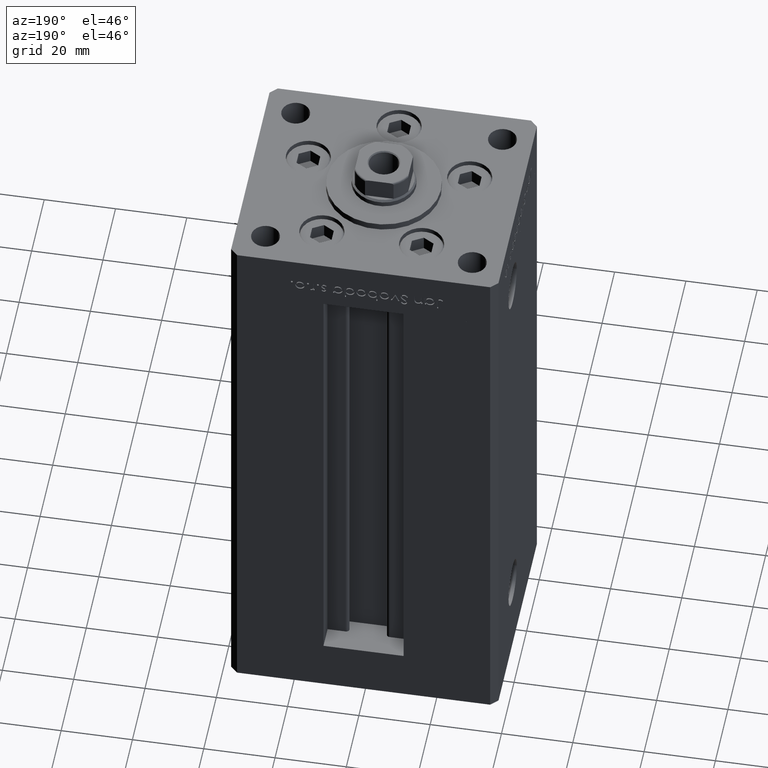
[diagram: clean part render]
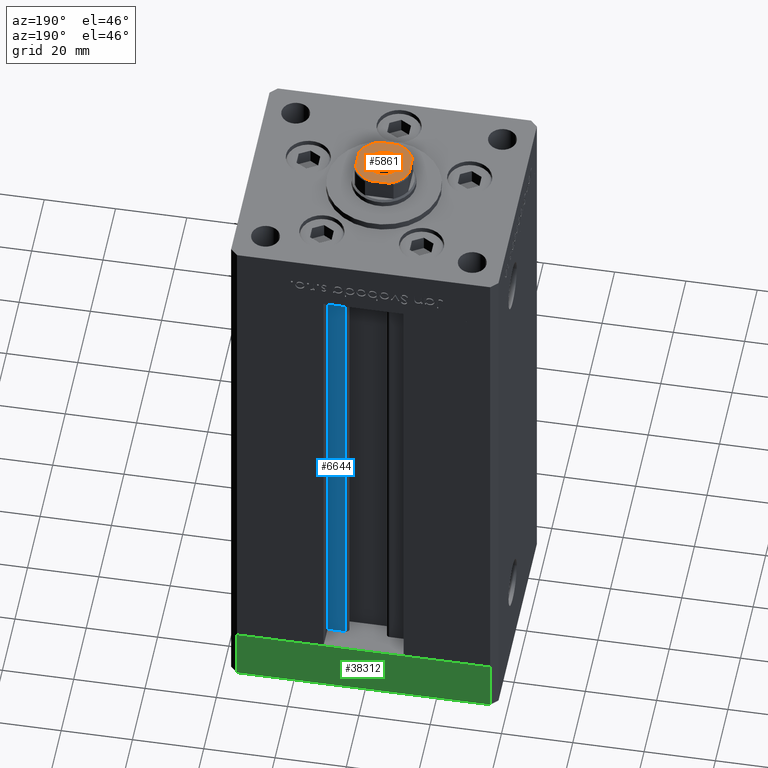
[diagram: same view with three faces highlighted in distinct colors, each labeled with its STEP entity id]
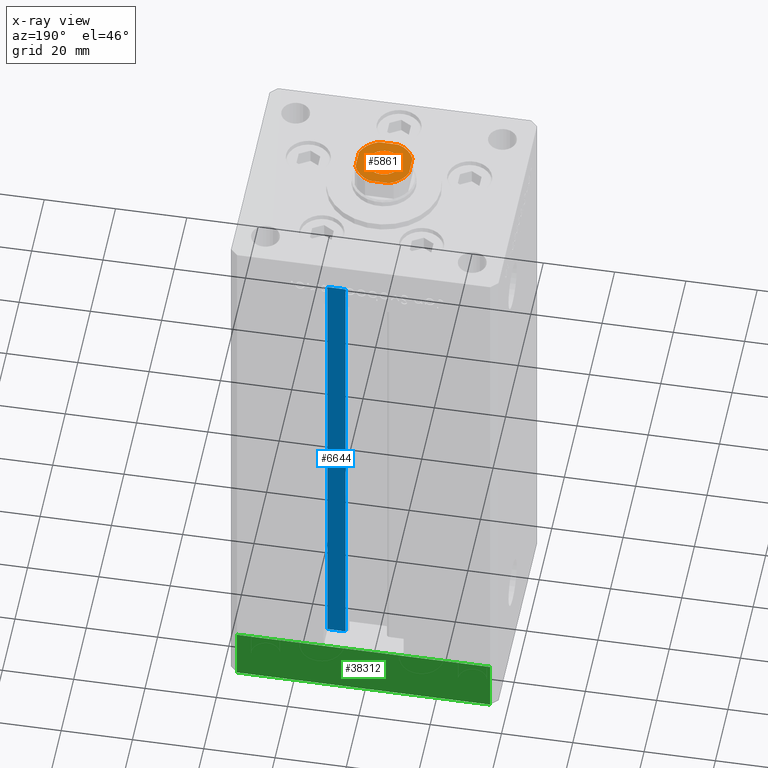
[diagram: x-ray of the same camera — body ghosted, the three highlighted faces saturated]
A machine part, auxiliary view with three faces highlighted in distinct colors.
The next image is the same camera in x-ray (body ghosted, the three faces saturated) — at least one of them is partly hidden behind the body in this view.
Their STEP definitions:

[orange] entity #5861 — the highlighted planar face has unit normal (0, 0, 1).
#858 = DIRECTION ( 'NONE',  ( -0.000000000000000000, 0.000000000000000000, 1.000000000000000000 ) ) ;
#1333 = CARTESIAN_POINT ( 'NONE',  ( -2.783882181415010315, -7.500000000000000888, 148.0000000000000284 ) ) ;
#2867 = CARTESIAN_POINT ( 'NONE',  ( -7.499999999999998224, -2.783882181415016088, 148.0000000000000284 ) ) ;
#3141 = DIRECTION ( 'NONE',  ( 1.156482317317871478E-16, 1.000000000000000000, -0.000000000000000000 ) ) ;
#3403 = EDGE_LOOP ( 'NONE', ( #9672, #18447 ) ) ;
#4054 = CARTESIAN_POINT ( 'NONE',  ( 0.000000000000000000, 0.000000000000000000, 148.0000000000000284 ) ) ;
#4218 = CARTESIAN_POINT ( 'NONE',  ( -7.499999999999997335, -7.500000000000000888, 148.0000000000000284 ) ) ;
#5634 = DIRECTION ( 'NONE',  ( -0.000000000000000000, 0.000000000000000000, 1.000000000000000000 ) ) ;
#5835 = CARTESIAN_POINT ( 'NONE',  ( 0.000000000000000000, 0.000000000000000000, 148.0000000000000284 ) ) ;
#5861 = ADVANCED_FACE ( 'NONE', ( #9013, #21117 ), #49598, .T. ) ;
#6294 = AXIS2_PLACEMENT_3D ( 'NONE', #4054, #16449, #20137 ) ;
#6310 = CIRCLE ( 'NONE', #48435, 4.550000000000012257 ) ;
#6887 = EDGE_CURVE ( 'NONE', #46415, #47223, #39782, .T. ) ;
#7149 = DIRECTION ( 'NONE',  ( 0.000000000000000000, -0.000000000000000000, -1.000000000000000000 ) ) ;
#7633 = LINE ( 'NONE', #47704, #48551 ) ;
#8181 = DIRECTION ( 'NONE',  ( 1.000000000000000000, 0.000000000000000000, 0.000000000000000000 ) ) ;
#8370 = VERTEX_POINT ( 'NONE', #1333 ) ;
#8440 = DIRECTION ( 'NONE',  ( 1.000000000000000000, 5.782411586589358625E-17, 0.000000000000000000 ) ) ;
#8817 = CIRCLE ( 'NONE', #6294, 8.000000000000000000 ) ;
#9013 = FACE_BOUND ( 'NONE', #3403, .T. ) ;
#9668 = CARTESIAN_POINT ( 'NONE',  ( 7.500000000000000888, -2.783882181415009427, 148.0000000000000284 ) ) ;
#9672 = ORIENTED_EDGE ( 'NONE', *, *, #15751, .T. ) ;
#9861 = CARTESIAN_POINT ( 'NONE',  ( 0.000000000000000000, 0.000000000000000000, 148.0000000000000284 ) ) ;
#10319 = CARTESIAN_POINT ( 'NONE',  ( 0.000000000000000000, 0.000000000000000000, 148.0000000000000284 ) ) ;
#11054 = VECTOR ( 'NONE', #31921, 1000.000000000000000 ) ;
#11620 = DIRECTION ( 'NONE',  ( 1.000000000000000000, 0.000000000000000000, 0.000000000000000000 ) ) ;
#11903 = CARTESIAN_POINT ( 'NONE',  ( 4.550000000000012257, 0.000000000000000000, 148.0000000000000284 ) ) ;
#12140 = DIRECTION ( 'NONE',  ( 0.000000000000000000, -0.000000000000000000, -1.000000000000000000 ) ) ;
#12238 = VECTOR ( 'NONE', #8440, 1000.000000000000000 ) ;
#13008 = ORIENTED_EDGE ( 'NONE', *, *, #32491, .T. ) ;
#13482 = DIRECTION ( 'NONE',  ( 1.000000000000000000, 0.000000000000000000, 0.000000000000000000 ) ) ;
#14612 = CIRCLE ( 'NONE', #44041, 8.000000000000000000 ) ;
#15007 = CARTESIAN_POINT ( 'NONE',  ( 2.783882181415012980, 7.500000000000000000, 148.0000000000000284 ) ) ;
#15380 = VERTEX_POINT ( 'NONE', #16159 ) ;
#15575 = EDGE_CURVE ( 'NONE', #15380, #39969, #6310, .T. ) ;
#15751 = EDGE_CURVE ( 'NONE', #39969, #15380, #25680, .T. ) ;
#16095 = CARTESIAN_POINT ( 'NONE',  ( 0.000000000000000000, 0.000000000000000000, 148.0000000000000284 ) ) ;
#16148 = CARTESIAN_POINT ( 'NONE',  ( -7.499999999999998224, 2.783882181415015644, 148.0000000000000284 ) ) ;
#16159 = CARTESIAN_POINT ( 'NONE',  ( -4.550000000000012257, 5.572142936120472118E-16, 148.0000000000000284 ) ) ;
#16406 = CARTESIAN_POINT ( 'NONE',  ( 2.783882181415008539, -7.500000000000000888, 148.0000000000000284 ) ) ;
#16449 = DIRECTION ( 'NONE',  ( -0.000000000000000000, 0.000000000000000000, 1.000000000000000000 ) ) ;
#18064 = EDGE_CURVE ( 'NONE', #51915, #8370, #14612, .T. ) ;
#18447 = ORIENTED_EDGE ( 'NONE', *, *, #15575, .T. ) ;
#19189 = ORIENTED_EDGE ( 'NONE', *, *, #20972, .T. ) ;
#19822 = AXIS2_PLACEMENT_3D ( 'NONE', #16095, #12140, #8181 ) ;
#20137 = DIRECTION ( 'NONE',  ( 1.000000000000000000, 0.000000000000000000, 0.000000000000000000 ) ) ;
#20374 = AXIS2_PLACEMENT_3D ( 'NONE', #9861, #5634, #34363 ) ;
#20972 = EDGE_CURVE ( 'NONE', #26641, #31730, #8817, .T. ) ;
#21117 = FACE_OUTER_BOUND ( 'NONE', #24585, .T. ) ;
#21271 = CARTESIAN_POINT ( 'NONE',  ( -7.499999999999998224, 7.499999999999999112, 148.0000000000000284 ) ) ;
#22647 = ORIENTED_EDGE ( 'NONE', *, *, #28246, .T. ) ;
#23650 = ORIENTED_EDGE ( 'NONE', *, *, #31119, .T. ) ;
#23698 = VERTEX_POINT ( 'NONE', #29628 ) ;
#24005 = AXIS2_PLACEMENT_3D ( 'NONE', #5835, #25864, #41177 ) ;
#24585 = EDGE_LOOP ( 'NONE', ( #23650, #25984, #29254, #30008, #13008, #19189, #42061, #22647 ) ) ;
#25075 = CARTESIAN_POINT ( 'NONE',  ( 0.000000000000000000, 0.000000000000000000, 148.0000000000000284 ) ) ;
#25336 = DIRECTION ( 'NONE',  ( 5.782411586589357392E-17, -1.000000000000000000, 0.000000000000000000 ) ) ;
#25680 = CIRCLE ( 'NONE', #19822, 4.550000000000012257 ) ;
#25864 = DIRECTION ( 'NONE',  ( -0.000000000000000000, 0.000000000000000000, 1.000000000000000000 ) ) ;
#25984 = ORIENTED_EDGE ( 'NONE', *, *, #18064, .T. ) ;
#26569 = CIRCLE ( 'NONE', #24005, 8.000000000000000000 ) ;
#26641 = VERTEX_POINT ( 'NONE', #38974 ) ;
#28246 = EDGE_CURVE ( 'NONE', #23698, #39198, #26569, .T. ) ;
#28589 = EDGE_CURVE ( 'NONE', #8370, #46415, #40340, .T. ) ;
#29254 = ORIENTED_EDGE ( 'NONE', *, *, #28589, .T. ) ;
#29628 = CARTESIAN_POINT ( 'NONE',  ( -2.783882181415013868, 7.499999999999999112, 148.0000000000000284 ) ) ;
#30008 = ORIENTED_EDGE ( 'NONE', *, *, #6887, .T. ) ;
#31119 = EDGE_CURVE ( 'NONE', #39198, #51915, #49860, .T. ) ;
#31730 = VERTEX_POINT ( 'NONE', #15007 ) ;
#31921 = DIRECTION ( 'NONE',  ( -1.000000000000000000, -5.782411586589357392E-17, -0.000000000000000000 ) ) ;
#32491 = EDGE_CURVE ( 'NONE', #47223, #26641, #7633, .T. ) ;
#33812 = AXIS2_PLACEMENT_3D ( 'NONE', #25075, #37214, #13482 ) ;
#34363 = DIRECTION ( 'NONE',  ( 1.000000000000000000, 0.000000000000000000, 0.000000000000000000 ) ) ;
#35903 = VECTOR ( 'NONE', #25336, 1000.000000000000000 ) ;
#36996 = CARTESIAN_POINT ( 'NONE',  ( 0.000000000000000000, 0.000000000000000000, 148.0000000000000284 ) ) ;
#37214 = DIRECTION ( 'NONE',  ( -0.000000000000000000, 0.000000000000000000, 1.000000000000000000 ) ) ;
#37740 = CARTESIAN_POINT ( 'NONE',  ( -7.499999999999998224, 7.499999999999999112, 148.0000000000000284 ) ) ;
#38974 = CARTESIAN_POINT ( 'NONE',  ( 7.500000000000000888, 2.783882181415007206, 148.0000000000000284 ) ) ;
#39198 = VERTEX_POINT ( 'NONE', #16148 ) ;
#39782 = CIRCLE ( 'NONE', #20374, 8.000000000000000000 ) ;
#39969 = VERTEX_POINT ( 'NONE', #11903 ) ;
#40340 = LINE ( 'NONE', #4218, #12238 ) ;
#41177 = DIRECTION ( 'NONE',  ( 1.000000000000000000, 0.000000000000000000, 0.000000000000000000 ) ) ;
#41571 = LINE ( 'NONE', #21271, #11054 ) ;
#42061 = ORIENTED_EDGE ( 'NONE', *, *, #50766, .T. ) ;
#44041 = AXIS2_PLACEMENT_3D ( 'NONE', #36996, #858, #49118 ) ;
#46415 = VERTEX_POINT ( 'NONE', #16406 ) ;
#47223 = VERTEX_POINT ( 'NONE', #9668 ) ;
#47704 = CARTESIAN_POINT ( 'NONE',  ( 7.500000000000001776, 7.500000000000000000, 148.0000000000000284 ) ) ;
#48435 = AXIS2_PLACEMENT_3D ( 'NONE', #10319, #7149, #11620 ) ;
#48551 = VECTOR ( 'NONE', #3141, 1000.000000000000000 ) ;
#49118 = DIRECTION ( 'NONE',  ( 1.000000000000000000, 0.000000000000000000, 0.000000000000000000 ) ) ;
#49598 = PLANE ( 'NONE',  #33812 ) ;
#49860 = LINE ( 'NONE', #37740, #35903 ) ;
#50766 = EDGE_CURVE ( 'NONE', #31730, #23698, #41571, .T. ) ;
#51915 = VERTEX_POINT ( 'NONE', #2867 ) ;

[blue] entity #6644 — the highlighted planar face has unit normal (0, -1, 0).
#2782 = LINE ( 'NONE', #43647, #46283 ) ;
#5958 = PLANE ( 'NONE',  #43990 ) ;
#6644 = ADVANCED_FACE ( 'NONE', ( #46032 ), #5958, .F. ) ;
#7306 = VERTEX_POINT ( 'NONE', #28664 ) ;
#7536 = DIRECTION ( 'NONE',  ( -0.000000000000000000, -0.000000000000000000, 1.000000000000000000 ) ) ;
#8014 = CARTESIAN_POINT ( 'NONE',  ( 11.25000000000000178, 25.99999999999999289, 136.0000000000000000 ) ) ;
#9155 = ORIENTED_EDGE ( 'NONE', *, *, #38080, .F. ) ;
#9926 = DIRECTION ( 'NONE',  ( 0.000000000000000000, -0.000000000000000000, -1.000000000000000000 ) ) ;
#12525 = VERTEX_POINT ( 'NONE', #25312 ) ;
#13336 = LINE ( 'NONE', #29929, #32694 ) ;
#14661 = CARTESIAN_POINT ( 'NONE',  ( 6.183333333334001480, 25.99999999999999289, 0.000000000000000000 ) ) ;
#15585 = DIRECTION ( 'NONE',  ( -1.000000000000000000, 0.000000000000000000, 0.000000000000000000 ) ) ;
#18154 = LINE ( 'NONE', #50324, #28284 ) ;
#20974 = DIRECTION ( 'NONE',  ( 1.000000000000000000, 0.000000000000000000, 0.000000000000000000 ) ) ;
#22297 = DIRECTION ( 'NONE',  ( 0.000000000000000000, -1.000000000000000000, 0.000000000000000000 ) ) ;
#23127 = VERTEX_POINT ( 'NONE', #25241 ) ;
#25241 = CARTESIAN_POINT ( 'NONE',  ( 6.183333333334001480, 25.99999999999999289, 136.0000000000000000 ) ) ;
#25312 = CARTESIAN_POINT ( 'NONE',  ( 6.183333333334001480, 25.99999999999999289, 0.000000000000000000 ) ) ;
#26664 = LINE ( 'NONE', #39586, #48087 ) ;
#28284 = VECTOR ( 'NONE', #38460, 1000.000000000000000 ) ;
#28664 = CARTESIAN_POINT ( 'NONE',  ( 11.25000000000000178, 25.99999999999999289, 0.000000000000000000 ) ) ;
#29929 = CARTESIAN_POINT ( 'NONE',  ( 6.183333333334001480, 25.99999999999999289, 0.000000000000000000 ) ) ;
#31467 = EDGE_CURVE ( 'NONE', #12525, #23127, #18154, .T. ) ;
#32357 = ORIENTED_EDGE ( 'NONE', *, *, #50749, .F. ) ;
#32694 = VECTOR ( 'NONE', #20974, 1000.000000000000000 ) ;
#38080 = EDGE_CURVE ( 'NONE', #12525, #7306, #13336, .T. ) ;
#38460 = DIRECTION ( 'NONE',  ( -0.000000000000000000, -0.000000000000000000, 1.000000000000000000 ) ) ;
#39586 = CARTESIAN_POINT ( 'NONE',  ( 0.000000000000000000, 25.99999999999999289, 136.0000000000000000 ) ) ;
#43647 = CARTESIAN_POINT ( 'NONE',  ( 11.25000000000000178, 25.99999999999999289, 0.000000000000000000 ) ) ;
#43739 = EDGE_LOOP ( 'NONE', ( #47942, #9155, #49321, #32357 ) ) ;
#43990 = AXIS2_PLACEMENT_3D ( 'NONE', #14661, #22297, #9926 ) ;
#46032 = FACE_OUTER_BOUND ( 'NONE', #43739, .T. ) ;
#46283 = VECTOR ( 'NONE', #7536, 1000.000000000000000 ) ;
#47298 = EDGE_CURVE ( 'NONE', #7306, #52206, #2782, .T. ) ;
#47942 = ORIENTED_EDGE ( 'NONE', *, *, #47298, .F. ) ;
#48087 = VECTOR ( 'NONE', #15585, 1000.000000000000000 ) ;
#49321 = ORIENTED_EDGE ( 'NONE', *, *, #31467, .T. ) ;
#50324 = CARTESIAN_POINT ( 'NONE',  ( 6.183333333334001480, 25.99999999999999289, 0.000000000000000000 ) ) ;
#50749 = EDGE_CURVE ( 'NONE', #52206, #23127, #26664, .T. ) ;
#52206 = VERTEX_POINT ( 'NONE', #8014 ) ;

[green] entity #38312 — the highlighted planar face has unit normal (0, 1, 0).
#1264 = EDGE_CURVE ( 'NONE', #46079, #28801, #4842, .T. ) ;
#1420 = ORIENTED_EDGE ( 'NONE', *, *, #15712, .T. ) ;
#2851 = CARTESIAN_POINT ( 'NONE',  ( -35.50000000000002842, 32.49999999999999289, 0.000000000000000000 ) ) ;
#3717 = EDGE_LOOP ( 'NONE', ( #23912, #4367, #41284, #1420 ) ) ;
#4196 = LINE ( 'NONE', #5231, #31943 ) ;
#4203 = VECTOR ( 'NONE', #49022, 1000.000000000000000 ) ;
#4367 = ORIENTED_EDGE ( 'NONE', *, *, #46774, .F. ) ;
#4842 = LINE ( 'NONE', #45175, #20352 ) ;
#5231 = CARTESIAN_POINT ( 'NONE',  ( 35.49999999999992184, 32.50000000000000711, -15.00000000000000000 ) ) ;
#6879 = CARTESIAN_POINT ( 'NONE',  ( -35.50000000000002842, 32.49999999999999289, -15.00000000000000000 ) ) ;
#9837 = PLANE ( 'NONE',  #19235 ) ;
#13611 = CARTESIAN_POINT ( 'NONE',  ( -35.50000000000002842, 32.49999999999999289, -15.00000000000000000 ) ) ;
#15712 = EDGE_CURVE ( 'NONE', #26818, #28801, #51693, .T. ) ;
#17484 = DIRECTION ( 'NONE',  ( -1.000000000000000000, -1.954618001100629052E-16, 0.000000000000000000 ) ) ;
#17491 = DIRECTION ( 'NONE',  ( -1.000000000000000000, -1.954618001100629052E-16, 0.000000000000000000 ) ) ;
#18718 = CARTESIAN_POINT ( 'NONE',  ( 35.49999999999992184, 32.50000000000000711, -15.00000000000000000 ) ) ;
#19235 = AXIS2_PLACEMENT_3D ( 'NONE', #25381, #41466, #17484 ) ;
#20275 = DIRECTION ( 'NONE',  ( -1.000000000000000000, -1.954618001100629052E-16, 0.000000000000000000 ) ) ;
#20352 = VECTOR ( 'NONE', #17491, 1000.000000000000000 ) ;
#23912 = ORIENTED_EDGE ( 'NONE', *, *, #1264, .F. ) ;
#24107 = CARTESIAN_POINT ( 'NONE',  ( 35.49999999999992184, 32.50000000000000711, 0.000000000000000000 ) ) ;
#25381 = CARTESIAN_POINT ( 'NONE',  ( 35.49999999999992184, 32.50000000000000711, -15.00000000000000000 ) ) ;
#26818 = VERTEX_POINT ( 'NONE', #13611 ) ;
#27164 = CARTESIAN_POINT ( 'NONE',  ( 35.49999999999992184, 32.50000000000000711, -15.00000000000000000 ) ) ;
#27424 = LINE ( 'NONE', #27164, #4203 ) ;
#28801 = VERTEX_POINT ( 'NONE', #2851 ) ;
#31648 = DIRECTION ( 'NONE',  ( 0.000000000000000000, 0.000000000000000000, 1.000000000000000000 ) ) ;
#31943 = VECTOR ( 'NONE', #20275, 1000.000000000000000 ) ;
#38312 = ADVANCED_FACE ( 'NONE', ( #49907 ), #9837, .T. ) ;
#41045 = VERTEX_POINT ( 'NONE', #18718 ) ;
#41284 = ORIENTED_EDGE ( 'NONE', *, *, #45920, .T. ) ;
#41466 = DIRECTION ( 'NONE',  ( -1.954618001100629052E-16, 1.000000000000000000, 0.000000000000000000 ) ) ;
#44220 = VECTOR ( 'NONE', #31648, 1000.000000000000000 ) ;
#45175 = CARTESIAN_POINT ( 'NONE',  ( 35.49999999999992184, 32.50000000000000711, 0.000000000000000000 ) ) ;
#45920 = EDGE_CURVE ( 'NONE', #41045, #26818, #4196, .T. ) ;
#46079 = VERTEX_POINT ( 'NONE', #24107 ) ;
#46774 = EDGE_CURVE ( 'NONE', #41045, #46079, #27424, .T. ) ;
#49022 = DIRECTION ( 'NONE',  ( 0.000000000000000000, 0.000000000000000000, 1.000000000000000000 ) ) ;
#49907 = FACE_OUTER_BOUND ( 'NONE', #3717, .T. ) ;
#51693 = LINE ( 'NONE', #6879, #44220 ) ;